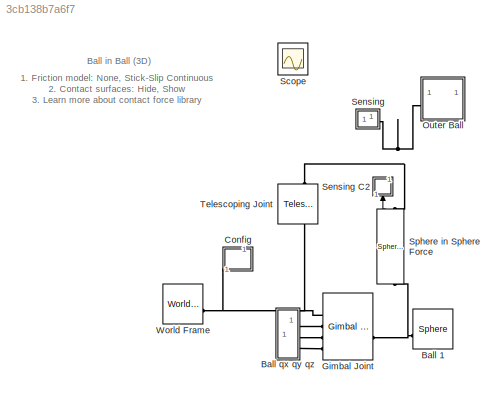
MODEL slx_3cb138b7a6f7
KIND model
CONFIG AbsTol = 1e-5
CONFIG EnableMultiTasking = on
CONFIG FixedStep = auto
CONFIG MaxStep = 1e-2
CONFIG MinStep = auto
CONFIG RelTol = 1e-4
CONFIG SampleTimeConstraint = Unconstrained
CONFIG SolverName = ode23t
CONFIG StartFcn = tic;
CONFIG StartTime = 0.0
CONFIG StopFcn = Elapsed_Sim_Time = toc;\ndisp(['Elapsed Sim Time = ' num2str(Elapsed_Sim_Time)]);\n
CONFIG StopTime = 40
WORKSPACE source: MATLAB code (in-file)
WORKSPACE code: ball1.rad = 0.4;
WORKSPACE code: ball1.input.filtconst = 0.4;
WORKSPACE code: ball1.input.period = 2;
WORKSPACE code: outer_ball.outer_rad = 0.82;
WORKSPACE code: outer_ball.inner_rad = 0.8;
WORKSPACE code: ball1.input.mag = 90;
WORKSPACE code: ball1.input.filtconst = 0.2;
WORKSPACE code: ball1.input.period = 2;
WORKSPACE code: ball1.input.x = [0 1 0 -1 0 0 0  0 0 0 0  0 0 0    0    0   0    0    0];
WORKSPACE code: ball1.input.y = [0 0 0  0 0 1 0 -1 0 0 0  0 0 0    1    0   -1   0    0];
WORKSPACE code: ball1.input.z = [0 0 0  0 0 0 0  0 0 1 0 -1 0 0.5 0.5 0.5 0.5 0.5 0];
BLOCK [Reference] Ball 1  REF=Parts_Lib/Sphere
  SourceBlock = Parts_Lib/Sphere
  SourceType = Sphere with Markings
  Tag = CustomStyle
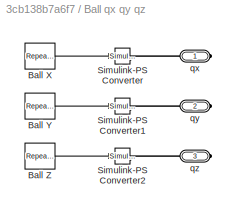
BLOCK [SubSystem] Ball qx qy qz
BLOCK [Reference] Ball qx qy qz/Ball X  REF=simulink/Sources/Repeating
Sequence
Stair
  SourceBlock = simulink/Sources/Repeating\nSequence\nStair
  SourceType = Repeating Sequence Stair
BLOCK [Reference] Ball qx qy qz/Ball Y  REF=simulink/Sources/Repeating
Sequence
Stair
  SourceBlock = simulink/Sources/Repeating\nSequence\nStair
  SourceType = Repeating Sequence Stair
BLOCK [Reference] Ball qx qy qz/Ball Z  REF=simulink/Sources/Repeating
Sequence
Stair
  SourceBlock = simulink/Sources/Repeating\nSequence\nStair
  SourceType = Repeating Sequence Stair
BLOCK [Reference] Ball qx qy qz/Simulink-PS Converter  REF=nesl_utility/Simulink-PS
Converter
  SourceBlock = nesl_utility/Simulink-PS\nConverter
  SourceType = Simulink-PS\nConverter
BLOCK [Reference] Ball qx qy qz/Simulink-PS Converter1  REF=nesl_utility/Simulink-PS
Converter
  SourceBlock = nesl_utility/Simulink-PS\nConverter
  SourceType = Simulink-PS\nConverter
BLOCK [Reference] Ball qx qy qz/Simulink-PS Converter2  REF=nesl_utility/Simulink-PS
Converter
  SourceBlock = nesl_utility/Simulink-PS\nConverter
  SourceType = Simulink-PS\nConverter
BLOCK [PMIOPort] Ball qx qy qz/qx
  Side = Right
BLOCK [PMIOPort] Ball qx qy qz/qy
  Port = 2
  Side = Right
BLOCK [PMIOPort] Ball qx qy qz/qz
  Port = 3
  Side = Right
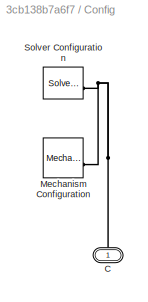
BLOCK [SubSystem] Config
  NameLocation = right
BLOCK [PMIOPort] Config/C
  NameLocation = right
  Side = Left
BLOCK [Reference] Config/Mechanism Configuration  REF=sm_lib/Utilities/Mechanism
Configuration
  SourceBlock = sm_lib/Utilities/Mechanism\nConfiguration
  SourceType = Mechanism\nConfiguration
BLOCK [Reference] Config/Solver Configuration  REF=nesl_utility/Solver
Configuration
  SourceBlock = nesl_utility/Solver\nConfiguration
  SourceType = Solver\nConfiguration
BLOCK [Reference] Gimbal Joint  REF=sm_lib/Joints/Gimbal Joint
  SourceBlock = sm_lib/Joints/Gimbal Joint
  SourceType = Gimbal Joint
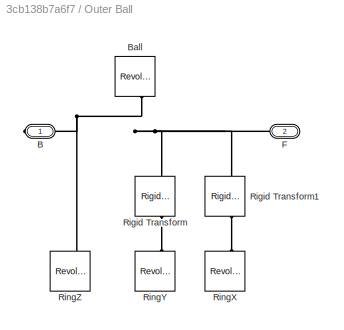
BLOCK [SubSystem] Outer Ball
  Tag = CustomStyle
BLOCK [PMIOPort] Outer Ball/B
  NameLocation = top
  Side = Right
BLOCK [Reference] Outer Ball/Ball  REF=sm_lib/Body Elements/Revolved Solid
  NameLocation = left
  SourceBlock = sm_lib/Body Elements/Revolved Solid
  SourceType = Revolved Solid
BLOCK [PMIOPort] Outer Ball/F
  NameLocation = top
  Port = 2
  Side = Left
BLOCK [Reference] Outer Ball/Rigid Transform  REF=sm_lib/Frames and
Transforms/Rigid
Transform
  NameLocation = left
  SourceBlock = sm_lib/Frames and\nTransforms/Rigid\nTransform
  SourceType = Rigid\nTransform
BLOCK [Reference] Outer Ball/Rigid Transform1  REF=sm_lib/Frames and
Transforms/Rigid
Transform
  NameLocation = right
  SourceBlock = sm_lib/Frames and\nTransforms/Rigid\nTransform
  SourceType = Rigid\nTransform
BLOCK [Reference] Outer Ball/RingX  REF=sm_lib/Body Elements/Revolved Solid
  NameLocation = right
  SourceBlock = sm_lib/Body Elements/Revolved Solid
  SourceType = Revolved Solid
BLOCK [Reference] Outer Ball/RingY  REF=sm_lib/Body Elements/Revolved Solid
  NameLocation = right
  SourceBlock = sm_lib/Body Elements/Revolved Solid
  SourceType = Revolved Solid
BLOCK [Reference] Outer Ball/RingZ  REF=sm_lib/Body Elements/Revolved Solid
  NameLocation = left
  SourceBlock = sm_lib/Body Elements/Revolved Solid
  SourceType = Revolved Solid
BLOCK [Scope] Scope
  Floating = off
  IOType = viewer
  NumInputPorts = 1
  ScopeSpecificationString = C++SS(StrPVP('Location','[610, 115, 1102, 652]'),StrPVP('Open','off'),MxPVP('AxesTitles',54,'struct(''axes1'',''%<SignalLabel>'')'),MxPVP('ScopeGraphics',57,'struct(''FigureColor'',''[0.5 0.5 0.5]'',''AxesColor'',''[0 0 0]'',''AxesTickColor'',''[1 1 1]'',''LineColors'',''[1 1 0;1 0 1;0 1 1;1 0 0;0 1 0;0 0 1]'',''LineStyles'',''-|-|-|-|-|-'',''LineWidths'',''[0.5 0.5 0.5 0.5 0.5 0.5]'',''MarkerStyl...<+304ch>
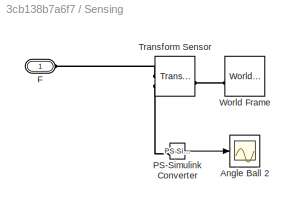
BLOCK [SubSystem] Sensing
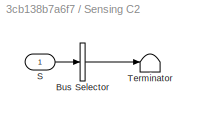
BLOCK [SubSystem] Sensing C2
  NameLocation = right
BLOCK [BusSelector] Sensing C2/Bus Selector
  OutputAsBus = on
  OutputSignals = Penetration
BLOCK [Inport] Sensing C2/S
  NameLocation = top
BLOCK [Terminator] Sensing C2/Terminator
BLOCK [Scope] Sensing/Angle Ball 2
  Floating = off
  NumInputPorts = 1
  ScopeSpecificationString = Simulink.scopes.TimeScopeBlockCfg('CurrentConfiguration', extmgr.ConfigurationSet(extmgr.Configuration('Core','General UI',true),extmgr.Configuration('Core','Source UI',true),extmgr.Configuration('Sources','WiredSimulink',true,'DataLoggingVariableName','ScopeData1','DataLoggingLimitDataPoints',true,'DataLoggingSaveFormat','Array','DataLoggingDecimation','1','DataLoggingDecimateData',true),extmgr.C...<+1636ch>
BLOCK [PMIOPort] Sensing/F
  Side = Left
BLOCK [Reference] Sensing/PS-Simulink Converter  REF=nesl_utility/PS-Simulink
Converter
  SourceBlock = nesl_utility/PS-Simulink\nConverter
  SourceType = PS-Simulink\nConverter
BLOCK [Reference] Sensing/Transform Sensor  REF=sm_lib/Frames and
Transforms/Transform
Sensor
  SourceBlock = sm_lib/Frames and\nTransforms/Transform\nSensor
  SourceType = Transform\nSensor
BLOCK [Reference] Sensing/World Frame  REF=sm_lib/Frames and
Transforms/World Frame
  NameLocation = top
  SourceBlock = sm_lib/Frames and\nTransforms/World Frame
  SourceType = World Frame
BLOCK [Reference] Sphere in Sphere Force  REF=Contact_Forces_Lib/3D/Sphere in Sphere Force
  NameLocation = right
  SourceBlock = Contact_Forces_Lib/3D/Sphere in Sphere Force
  SourceProductName = Simscape Multibody Contact Forces Library
  SourceType = Sphere in Sphere Force
BLOCK [Reference] Telescoping Joint  REF=sm_lib/Joints/Telescoping
Joint
  NameLocation = left
  SourceBlock = sm_lib/Joints/Telescoping\nJoint
  SourceType = Telescoping\nJoint
BLOCK [Reference] World Frame  REF=sm_lib/Frames and
Transforms/World Frame
  SourceBlock = sm_lib/Frames and\nTransforms/World Frame
  SourceType = World Frame
ANNOTATION (root): 1. Friction model: None , Stick-Slip Continuous 2. Contact surfaces: Hide , Show 3. Learn more about contact force library
ANNOTATION (root): Ball in Ball (3D)
LINE Ball qx qy qz/Ball X:1 -> Ball qx qy qz/Simulink-PS Converter:1
LINE Ball qx qy qz/Ball Y:1 -> Ball qx qy qz/Simulink-PS Converter1:1
LINE Ball qx qy qz/Ball Z:1 -> Ball qx qy qz/Simulink-PS Converter2:1
LINE Sensing C2/Bus Selector:1 -> Sensing C2/Terminator:1
LINE Sensing C2/S:1 -> Sensing C2/Bus Selector:1
LINE Sensing/PS-Simulink Converter:1 -> Sensing/Angle Ball 2:1
LINE Sphere in Sphere Force:1 -> Sensing C2:1
PNET net1: Ball 1:LConn1 -- Gimbal Joint:RConn1 -- Sphere in Sphere Force:LConn1
PLINE Ball qx qy qz/Simulink-PS Converter1:RConn1 -- Ball qx qy qz/qy:RConn1
PLINE Ball qx qy qz/Simulink-PS Converter2:RConn1 -- Ball qx qy qz/qz:RConn1
PLINE Ball qx qy qz/Simulink-PS Converter:RConn1 -- Ball qx qy qz/qx:RConn1
PLINE Ball qx qy qz:RConn1 -- Gimbal Joint:LConn2
PLINE Ball qx qy qz:RConn2 -- Gimbal Joint:LConn3
PLINE Ball qx qy qz:RConn3 -- Gimbal Joint:LConn4
PNET net2: Config/C:RConn1 -- Config/Mechanism Configuration:RConn1 -- Config/Solver Configuration:RConn1
PNET net3: Config:LConn1 -- Gimbal Joint:LConn1 -- Telescoping Joint:RConn1 -- World Frame:RConn1
PNET net4: Outer Ball/B:RConn1 -- Outer Ball/Ball:RConn1 -- Outer Ball/F:RConn1 -- Outer Ball/Rigid Transform1:LConn1 -- Outer Ball/Rigid Transform:LConn1 -- Outer Ball/RingZ:RConn1
PLINE Outer Ball/Rigid Transform1:RConn1 -- Outer Ball/RingX:RConn1
PLINE Outer Ball/Rigid Transform:RConn1 -- Outer Ball/RingY:RConn1
PNET net5: Outer Ball:RConn1 -- Sensing:LConn1 -- Sphere in Sphere Force:RConn1 -- Telescoping Joint:LConn1
PLINE Sensing/F:RConn1 -- Sensing/Transform Sensor:RConn1
PLINE Sensing/PS-Simulink Converter:LConn1 -- Sensing/Transform Sensor:RConn2
PLINE Sensing/Transform Sensor:LConn1 -- Sensing/World Frame:RConn1
note: PNET lines group multi-terminal physical nets as a canonical sorted terminal list (undirected conserving connections); 2-terminal nets keep the pairwise PLINE form
